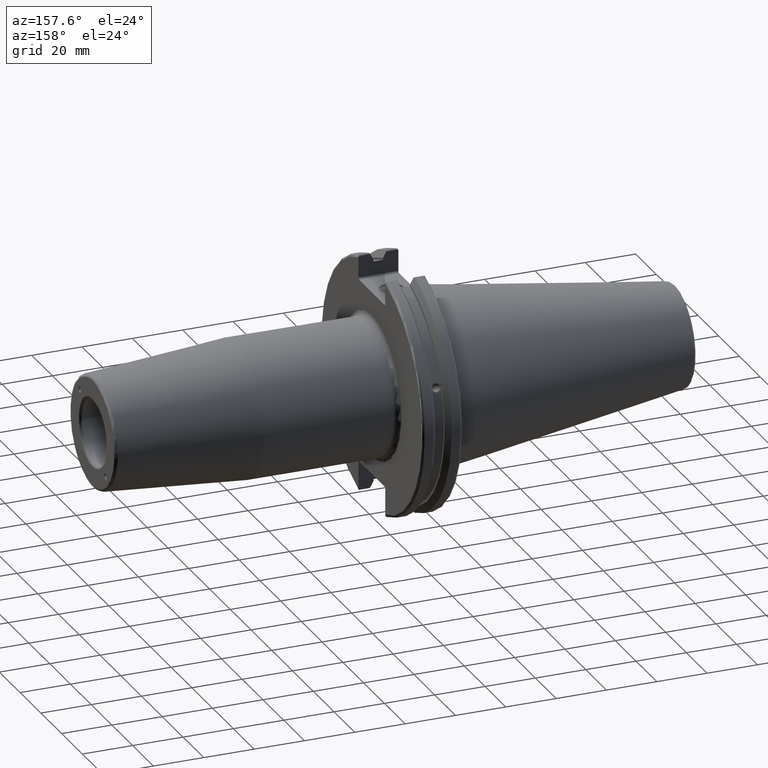
[diagram: clean part render]
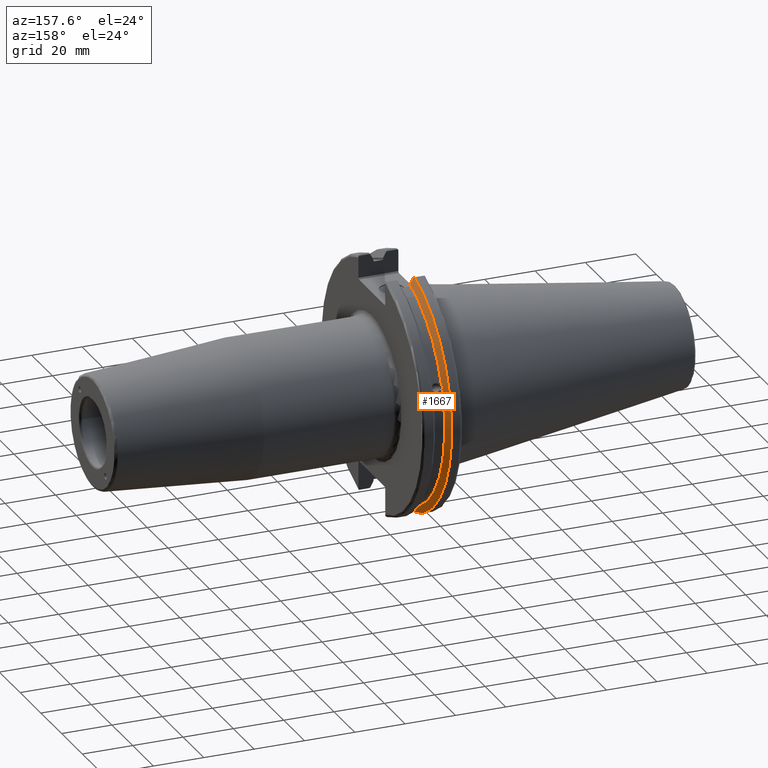
[diagram: same view with one face highlighted and labeled with its STEP entity id]
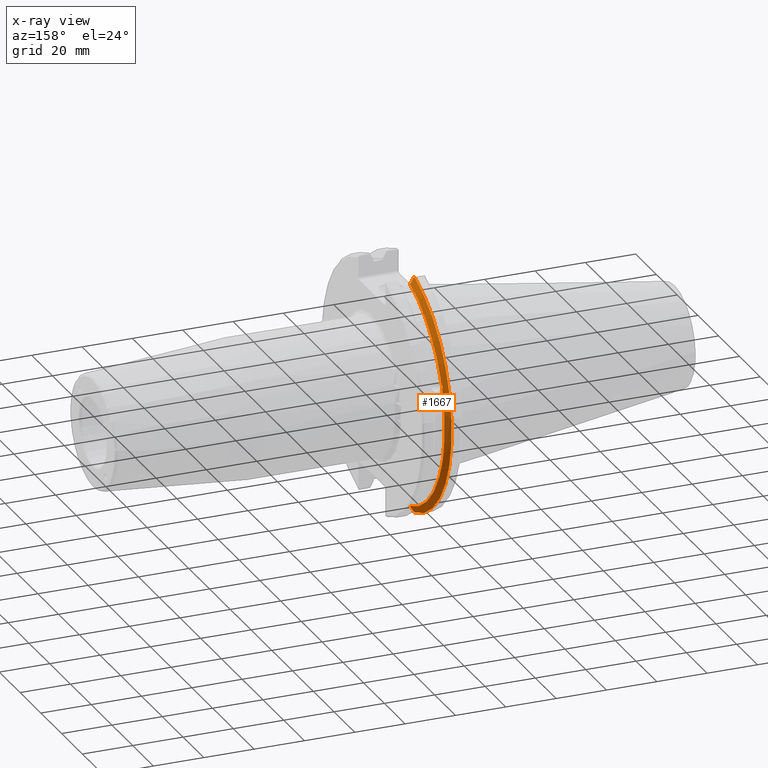
[diagram: x-ray of the same camera — body ghosted, the highlighted face saturated]
A machine part, auxiliary view. The second image highlights one B-rep face of the part: STEP entity #1667.
The next image is the same camera in x-ray: the body ghosted, the highlighted face saturated — about 0% of this face is hidden behind the body in this view.
In plain terms, the highlighted conical surface has half-angle 60 deg.
Its self-contained STEP definition (entity closure, byte-faithful):
#19=(
BOUNDED_CURVE()
B_SPLINE_CURVE(2,(#3203,#3204,#3205),.UNSPECIFIED.,.F.,.F.)
B_SPLINE_CURVE_WITH_KNOTS((3,3),(0.,0.275823910674652),.UNSPECIFIED.)
CURVE()
GEOMETRIC_REPRESENTATION_ITEM()
RATIONAL_B_SPLINE_CURVE((1.,1.00038235573731,1.00012873636533))
REPRESENTATION_ITEM('')
);
#20=(
BOUNDED_CURVE()
B_SPLINE_CURVE(2,(#3207,#3208,#3209),.UNSPECIFIED.,.F.,.F.)
B_SPLINE_CURVE_WITH_KNOTS((3,3),(0.,0.0648240472898323),.UNSPECIFIED.)
CURVE()
GEOMETRIC_REPRESENTATION_ITEM()
RATIONAL_B_SPLINE_CURVE((1.,1.00011477674853,1.00019140645976))
REPRESENTATION_ITEM('')
);
#21=(
BOUNDED_CURVE()
B_SPLINE_CURVE(2,(#3213,#3214,#3215),.UNSPECIFIED.,.F.,.F.)
B_SPLINE_CURVE_WITH_KNOTS((3,3),(0.325260944932483,0.390084992222205),
 .UNSPECIFIED.)
CURVE()
GEOMETRIC_REPRESENTATION_ITEM()
RATIONAL_B_SPLINE_CURVE((1.00019140645955,1.00011477674841,1.))
REPRESENTATION_ITEM('')
);
#22=(
BOUNDED_CURVE()
B_SPLINE_CURVE(2,(#3217,#3218,#3219),.UNSPECIFIED.,.F.,.F.)
B_SPLINE_CURVE_WITH_KNOTS((3,3),(0.0558332664491378,0.331657177124507),
 .UNSPECIFIED.)
CURVE()
GEOMETRIC_REPRESENTATION_ITEM()
RATIONAL_B_SPLINE_CURVE((1.00012873637135,1.00038235575519,1.))
REPRESENTATION_ITEM('')
);
#107=CONICAL_SURFACE('',#1826,47.8172386482472,1.0471975511966);
#156=CIRCLE('',#1827,46.4219772964944);
#157=CIRCLE('',#1828,49.2125);
#158=CIRCLE('',#1829,46.4219772964944);
#233=FACE_OUTER_BOUND('',#341,.T.);
#341=EDGE_LOOP('',(#1309,#1310,#1311,#1312,#1313,#1314,#1315,#1316));
#440=B_SPLINE_CURVE_WITH_KNOTS('',3,(#3156,#3157,#3158,#3159,#3160,#3161,
#3162,#3163,#3164,#3165,#3166,#3167,#3168,#3169),.UNSPECIFIED.,.F.,.F.,
(4,2,2,2,2,2,4),(0.426712868358718,0.441644498666905,0.480313313223129,
0.518982127779353,0.557650942335577,0.596319756891801,0.611251387199986),
 .UNSPECIFIED.);
#759=VERTEX_POINT('',#3153);
#760=VERTEX_POINT('',#3155);
#764=VERTEX_POINT('',#3200);
#765=VERTEX_POINT('',#3202);
#766=VERTEX_POINT('',#3206);
#767=VERTEX_POINT('',#3210);
#768=VERTEX_POINT('',#3212);
#769=VERTEX_POINT('',#3216);
#961=EDGE_CURVE('',#760,#759,#440,.T.);
#966=EDGE_CURVE('',#764,#759,#156,.T.);
#967=EDGE_CURVE('',#764,#765,#19,.T.);
#968=EDGE_CURVE('',#766,#765,#20,.T.);
#969=EDGE_CURVE('',#766,#767,#157,.T.);
#970=EDGE_CURVE('',#768,#767,#21,.T.);
#971=EDGE_CURVE('',#768,#769,#22,.T.);
#972=EDGE_CURVE('',#760,#769,#158,.T.);
#1309=ORIENTED_EDGE('',*,*,#961,.T.);
#1310=ORIENTED_EDGE('',*,*,#966,.F.);
#1311=ORIENTED_EDGE('',*,*,#967,.T.);
#1312=ORIENTED_EDGE('',*,*,#968,.F.);
#1313=ORIENTED_EDGE('',*,*,#969,.T.);
#1314=ORIENTED_EDGE('',*,*,#970,.F.);
#1315=ORIENTED_EDGE('',*,*,#971,.T.);
#1316=ORIENTED_EDGE('',*,*,#972,.F.);
#1667=ADVANCED_FACE('',(#233),#107,.T.);
#1826=AXIS2_PLACEMENT_3D('',#3199,#2131,#2132);
#1827=AXIS2_PLACEMENT_3D('',#3201,#2133,#2134);
#1828=AXIS2_PLACEMENT_3D('',#3211,#2135,#2136);
#1829=AXIS2_PLACEMENT_3D('',#3220,#2137,#2138);
#2131=DIRECTION('center_axis',(-1.,0.,0.));
#2132=DIRECTION('ref_axis',(0.,1.,0.));
#2133=DIRECTION('center_axis',(1.,0.,0.));
#2134=DIRECTION('ref_axis',(0.,0.,-1.));
#2135=DIRECTION('center_axis',(1.,0.,0.));
#2136=DIRECTION('ref_axis',(0.,0.,-1.));
#2137=DIRECTION('center_axis',(1.,0.,0.));
#2138=DIRECTION('ref_axis',(0.,0.,-1.));
#3153=CARTESIAN_POINT('',(9.2191,43.9096390749305,15.0646464421033));
#3155=CARTESIAN_POINT('',(9.2191,43.3201030900029,16.684383248648));
#3156=CARTESIAN_POINT('Ctrl Pts',(9.21910000000001,43.3201030900029,16.6843832486479));
#3157=CARTESIAN_POINT('Ctrl Pts',(9.20211843903392,43.3613106941341,16.6592273018006));
#3158=CARTESIAN_POINT('Ctrl Pts',(9.18608675403323,43.4012416983557,16.6326763251437));
#3159=CARTESIAN_POINT('Ctrl Pts',(9.13238673845037,43.539103734322,16.5325130832406));
#3160=CARTESIAN_POINT('Ctrl Pts',(9.09621610663555,43.6406982153491,16.441180795372));
#3161=CARTESIAN_POINT('Ctrl Pts',(9.04690868251975,43.8110833825827,16.2291323464527));
#3162=CARTESIAN_POINT('Ctrl Pts',(9.0341,43.8794096049168,16.10796730316));
#3163=CARTESIAN_POINT('Ctrl Pts',(9.0341,43.9675796948952,15.8657219718732));
#3164=CARTESIAN_POINT('Ctrl Pts',(9.04690868251975,43.9931221605126,15.7289849146254));
#3165=CARTESIAN_POINT('Ctrl Pts',(9.09621610663555,43.9989016655819,15.4570249042868));
#3166=CARTESIAN_POINT('Ctrl Pts',(9.13238673845037,43.9797830409458,15.3217566390708));
#3167=CARTESIAN_POINT('Ctrl Pts',(9.18608675403322,43.9385582852181,15.1564111356409));
#3168=CARTESIAN_POINT('Ctrl Pts',(9.20211843903391,43.9250360001461,15.1104047527575));
#3169=CARTESIAN_POINT('Ctrl Pts',(9.2191,43.9096390749305,15.0646464421033));
#3199=CARTESIAN_POINT('Origin',(8.41354548297563,0.,0.));
#3200=CARTESIAN_POINT('',(9.2191,12.95,-44.5791147973604));
#3201=CARTESIAN_POINT('Origin',(9.2191,0.,0.));
#3202=CARTESIAN_POINT('',(7.88638960562424,12.95,-46.9780755322918));
#3203=CARTESIAN_POINT('Ctrl Pts',(9.2191,12.95,-44.5791147973604));
#3204=CARTESIAN_POINT('Ctrl Pts',(8.57020449055827,12.95,-45.7494966802153));
#3205=CARTESIAN_POINT('Ctrl Pts',(7.88638960562424,12.95,-46.9780755322918));
#3206=CARTESIAN_POINT('',(7.60799096595127,13.4317035994433,-47.3440544806494));
#3207=CARTESIAN_POINT('Ctrl Pts',(7.60799096595127,13.4317035994433,-47.3440544806494));
#3208=CARTESIAN_POINT('Ctrl Pts',(7.74826896663818,13.1896660169966,-47.1601640966265));
#3209=CARTESIAN_POINT('Ctrl Pts',(7.88638960562424,12.95,-46.9780755322918));
#3210=CARTESIAN_POINT('',(7.60799096595127,13.4317035994433,47.3440544806494));
#3211=CARTESIAN_POINT('Origin',(7.60799096595127,0.,0.));
#3212=CARTESIAN_POINT('',(7.88638960562424,12.95,46.9780755322918));
#3213=CARTESIAN_POINT('Ctrl Pts',(7.88638960562424,12.95,46.9780755322917));
#3214=CARTESIAN_POINT('Ctrl Pts',(7.74826896663821,13.1896660169966,47.1601640966264));
#3215=CARTESIAN_POINT('Ctrl Pts',(7.60799096595127,13.4317035994433,47.3440544806494));
#3216=CARTESIAN_POINT('',(9.2191,12.95,44.5791147973604));
#3217=CARTESIAN_POINT('Ctrl Pts',(7.88638960562424,12.95,46.9780755322918));
#3218=CARTESIAN_POINT('Ctrl Pts',(8.57020449055492,12.95,45.7494966802213));
#3219=CARTESIAN_POINT('Ctrl Pts',(9.2191,12.95,44.5791147973604));
#3220=CARTESIAN_POINT('Origin',(9.2191,0.,0.));